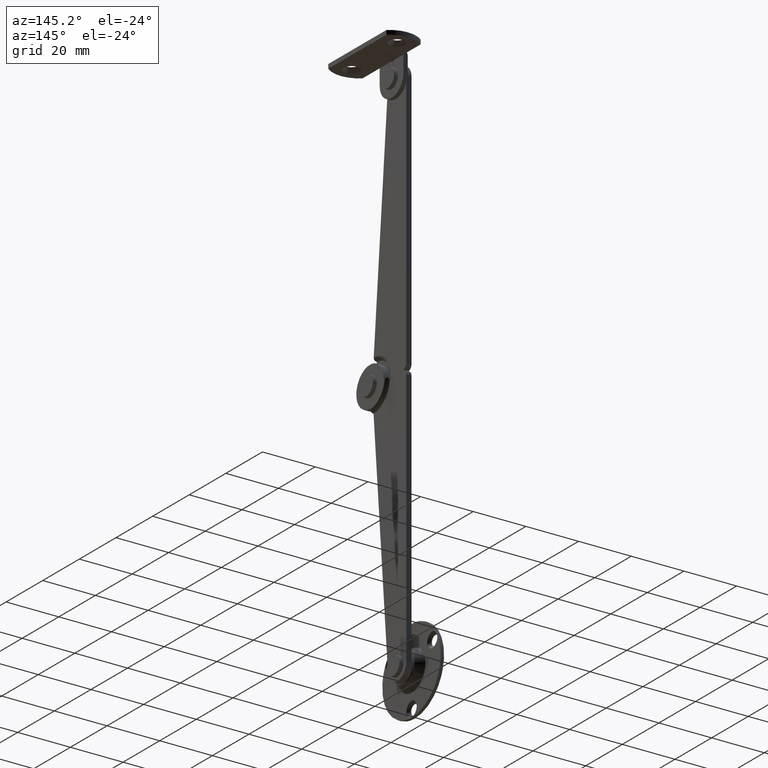
[diagram: clean part render]
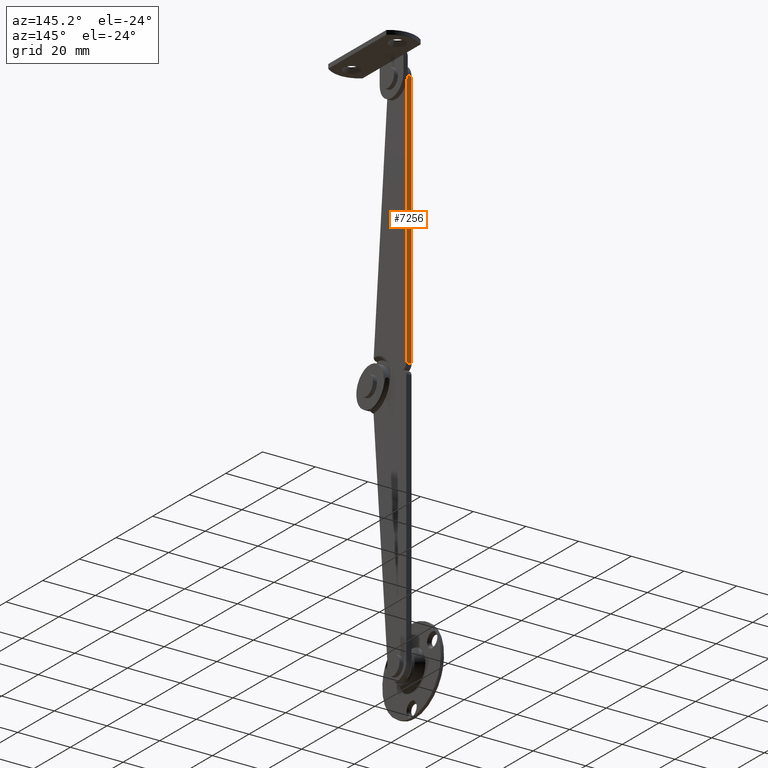
[diagram: same view with one face highlighted and labeled with its STEP entity id]
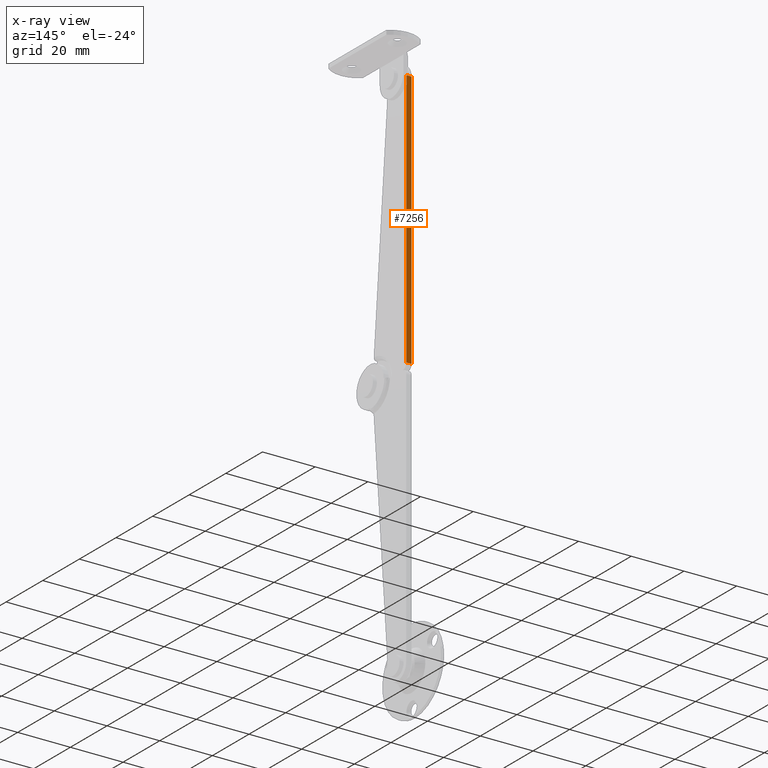
[diagram: x-ray of the same camera — body ghosted, the highlighted face saturated]
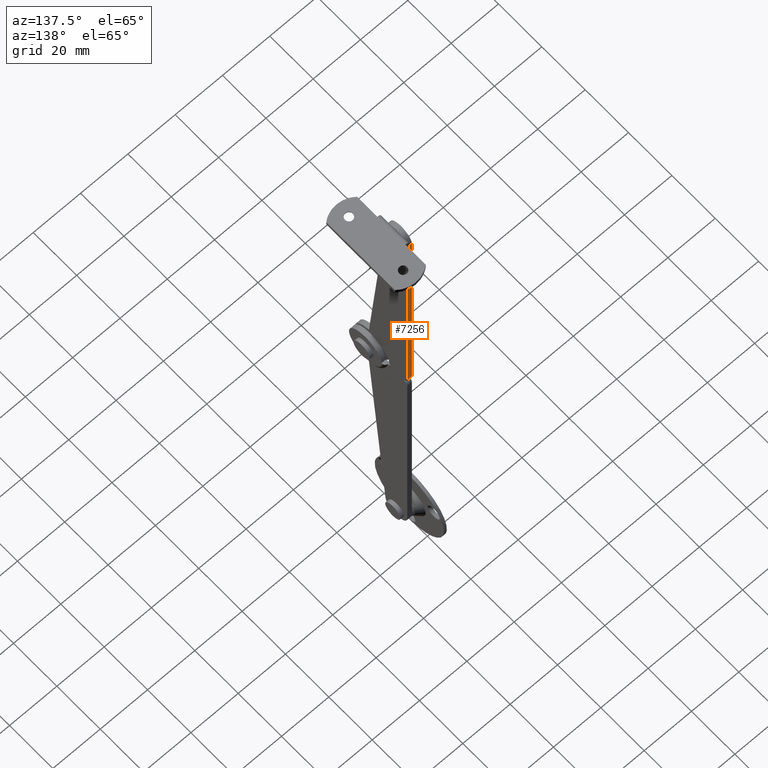
[diagram: same view with one face highlighted and labeled with its STEP entity id]
A machine part, auxiliary view. The second image highlights one B-rep face of the part: STEP entity #7256.
The next image is the same camera in x-ray: the body ghosted, the highlighted face saturated — about 0% of this face is hidden behind the body in this view.
A second angle (auxiliary view) of the same face is appended — the face is thin or edge-on in the first view.
In plain terms, the highlighted face is a freeform B-spline surface patch.
Its self-contained STEP definition (entity closure, byte-faithful):
#7068=CARTESIAN_POINT('',(6.699993133544766,18.000000000000011,1.999996185302737));
#7069=VERTEX_POINT('',#7068);
#7083=CARTESIAN_POINT('',(6.699993133544766,18.000000000000011,99.999984741210852));
#7084=VERTEX_POINT('',#7083);
#7085=CARTESIAN_POINT('',(6.699993133544766,18.000000000000011,99.999984741210852));
#7086=CARTESIAN_POINT('',(6.699993133544766,18.000000000000011,1.999996185302737));
#7087=QUASI_UNIFORM_CURVE('',1,(#7085,#7086),.UNSPECIFIED.,.F.,.U.);
#7088=EDGE_CURVE('',#7084,#7069,#7087,.T.);
#7130=CARTESIAN_POINT('',(4.699993133544766,18.000000000000011,99.999984741210852));
#7131=VERTEX_POINT('',#7130);
#7150=CARTESIAN_POINT('',(4.699993133544766,18.000000000000011,1.999996185302737));
#7151=VERTEX_POINT('',#7150);
#7152=CARTESIAN_POINT('',(4.699993133544766,18.000000000000011,99.999984741210852));
#7153=CARTESIAN_POINT('',(4.699993133544766,18.000000000000011,1.999996185302737));
#7154=QUASI_UNIFORM_CURVE('',1,(#7152,#7153),.UNSPECIFIED.,.F.,.U.);
#7155=EDGE_CURVE('',#7131,#7151,#7154,.T.);
#7231=CARTESIAN_POINT('',(4.699993133544766,18.000000000000011,99.999984741210852));
#7232=CARTESIAN_POINT('',(6.699993133544766,18.000000000000011,99.999984741210852));
#7233=QUASI_UNIFORM_CURVE('',1,(#7231,#7232),.UNSPECIFIED.,.F.,.U.);
#7234=EDGE_CURVE('',#7131,#7084,#7233,.T.);
#7241=CARTESIAN_POINT('',(6.799893129668377,18.000000000000011,-2.895103053121886));
#7242=CARTESIAN_POINT('',(6.799893129668377,18.000000000000011,104.895086608200000));
#7243=CARTESIAN_POINT('',(4.600093083776972,18.000000000000011,-2.895103053121886));
#7244=CARTESIAN_POINT('',(4.600093083776972,18.000000000000011,104.895086608200000));
#7245=B_SPLINE_SURFACE_WITH_KNOTS('',1,1,((#7241,#7243),(#7242,#7244)),.UNSPECIFIED.,.F.,.F.,.U.,(2,2),(2,2),(0.0,107.790189661321900),(0.0,2.199800045891405),.UNSPECIFIED.);
#7246=ORIENTED_EDGE('',*,*,#7088,.T.);
#7247=CARTESIAN_POINT('',(4.699993133544766,18.000000000000011,1.999996185302737));
#7248=CARTESIAN_POINT('',(6.699993133544766,18.000000000000011,1.999996185302737));
#7249=QUASI_UNIFORM_CURVE('',1,(#7247,#7248),.UNSPECIFIED.,.F.,.U.);
#7250=EDGE_CURVE('',#7151,#7069,#7249,.T.);
#7251=ORIENTED_EDGE('',*,*,#7250,.F.);
#7252=ORIENTED_EDGE('',*,*,#7155,.F.);
#7253=ORIENTED_EDGE('',*,*,#7234,.T.);
#7254=EDGE_LOOP('',(#7246,#7251,#7252,#7253));
#7255=FACE_OUTER_BOUND('',#7254,.T.);
#7256=ADVANCED_FACE('',(#7255),#7245,.F.);